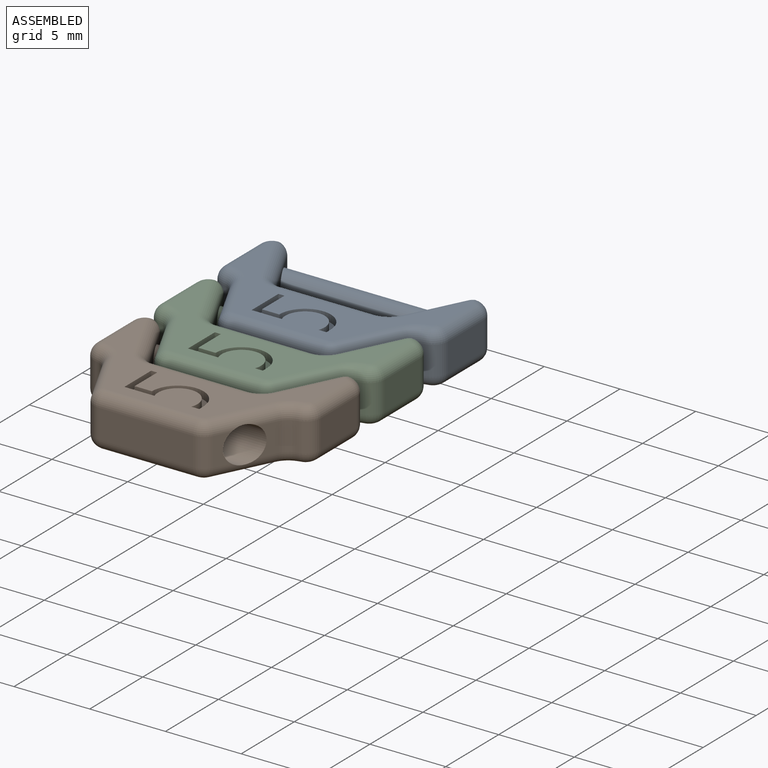
[diagram: assembled view]
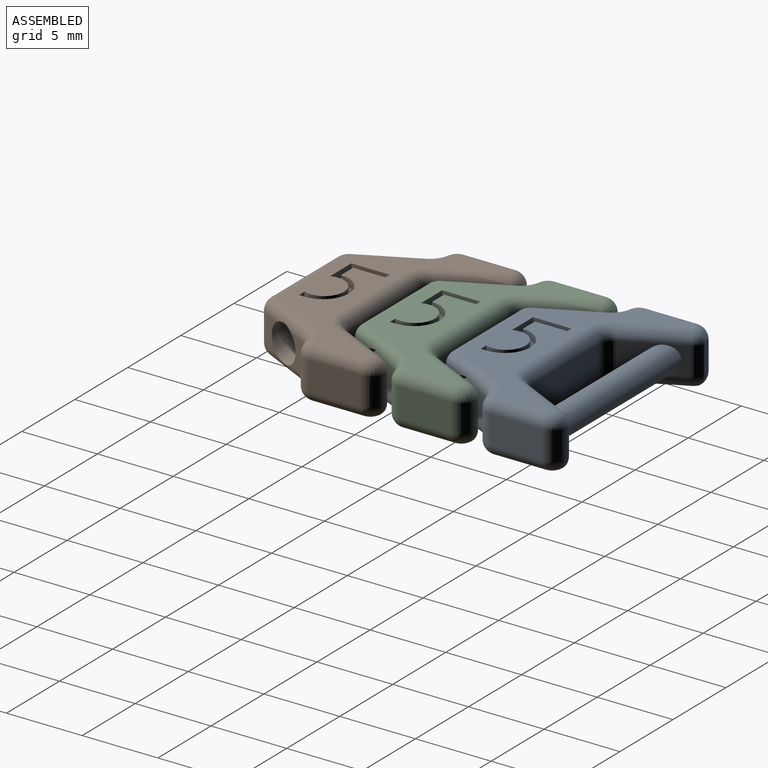
[diagram: assembled view, second angle]
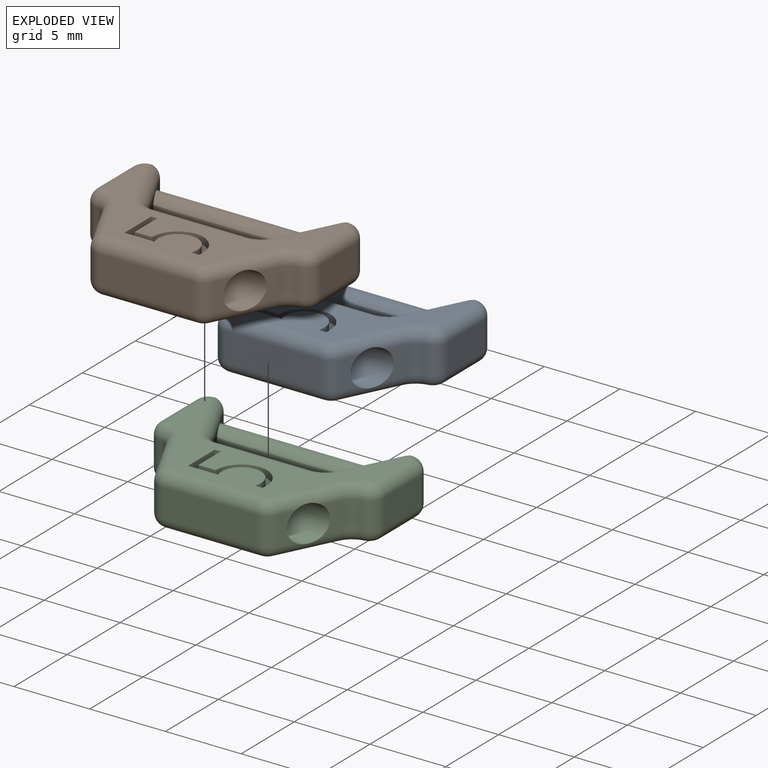
[diagram: exploded view]
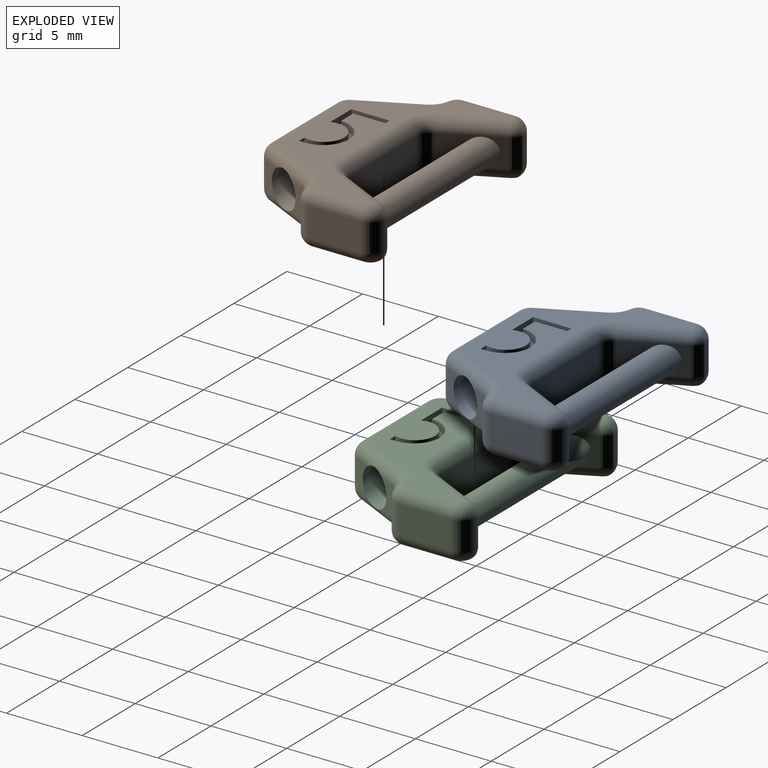
[diagram: exploded view, second angle]
ASSEMBLY  parts=3 mates=2
PART A: 82 faces, bbox 15.2x10.4x3.7 mm
  f0: plane 13.4x8.55mm, normal (0,0,1), area 39.4mm2, adj f26,f27,f28,f29,f30,f31,f32,f33
  f1: plane 1.9x1.03mm, normal (0.89,-0.45,0), area 1.5mm2, adj f14,f38,f59,f70
  f2: plane 1.9x1.17mm, normal (-0.89,-0.45,0), area 1.8mm2, adj f24,f46,f67,f70
  f3: plane 6.26x1.9mm, normal (0,-1,0), area 11.9mm2, adj f14,f25,f42,f63
  f4: plane 1.9x1.17mm, normal (0.89,-0.45,0), area 1.8mm2, adj f15,f38,f59,f70
  f5: plane 1.9x0.23mm, normal (0.24,-0.97,0), area 0.5mm2, adj f15,f16,f34,f55
  f6: plane 3.39x1.9mm, normal (1,0,0), area 6.4mm2, adj f16,f18,f30,f51
  f7: plane 3.86x2.09mm, normal (-0.89,0.45,0), area 5mm2, adj f17,f19,f27,f50,f71
  f8: plane 6.26x1.9mm, normal (0,1,0), area 11.9mm2, adj f19,f20,f31,f54
  f9: plane 3.67x1.9mm, normal (0.89,0.45,0), area 5mm2, adj f20,f22,f35,f58,f71
  f10: plane 3.39x1.9mm, normal (-1,0,0), area 6.4mm2, adj f21,f23,f41,f64
  f11: plane 1.9x0.23mm, normal (-0.24,-0.97,0), area 0.5mm2, adj f23,f24,f45,f68
  f12: plane 1.9x1.03mm, normal (-0.89,-0.45,0), area 1.5mm2, adj f25,f46,f67,f70
  f13: plane 13.4x8.55mm, normal (0,0,-1), area 42.9mm2, adj f48,f49,f50,f51,f52,f53,f54,f55
  f14: cylinder r=1mm len=1.9mm, axis (0,0,1), area 2.1mm2, adj f1,f3,f40,f61
  f15: cylinder r=1mm len=1.9mm, axis (0,0,1), area 1.6mm2, adj f4,f5,f36,f57
  f16: cylinder r=1mm len=1.9mm, axis (0,0,-1), area 2.5mm2, adj f5,f6,f32,f53
  f17: cylinder r=1mm len=1.9mm, axis (0,0,-1), area 1.4mm2, adj f7,f18,f26,f48
  f18: cylinder r=1mm len=1.9mm, axis (0,0,-1), area 3.2mm2, adj f6,f17,f28,f49
  f19: cylinder r=1mm len=1.9mm, axis (0,0,1), area 2.1mm2, adj f7,f8,f29,f52
  f20: cylinder r=1mm len=1.9mm, axis (0,0,-1), area 2.1mm2, adj f8,f9,f33,f56
  f21: cylinder r=1mm len=1.9mm, axis (0,0,-1), area 3.2mm2, adj f10,f22,f39,f62
  f22: cylinder r=1mm len=1.9mm, axis (0,0,-1), area 1.4mm2, adj f9,f21,f37,f60
  f23: cylinder r=1mm len=1.9mm, axis (0,0,-1), area 2.5mm2, adj f10,f11,f43,f66
  f24: cylinder r=1mm len=1.9mm, axis (0,0,1), area 1.6mm2, adj f2,f11,f47,f69
  f25: cylinder r=1mm len=1.9mm, axis (0,0,-1), area 2.1mm2, adj f3,f12,f44,f65
  f26: torus R=0.2mm, axis (0,0,1), area 0.6mm2, adj f0,f17,f27,f28
  f27: cylinder r=0.8mm len=4.03mm, axis (0.45,0.89,0), area 5.2mm2, adj f0,f7,f26,f29
  f28: torus R=0.2mm, axis (0,0,1), area 1.5mm2, adj f0,f18,f26,f30
  f29: torus R=1.8mm, axis (0,0,1), area 1.8mm2, adj f0,f19,f27,f31
  f30: cylinder r=0.8mm len=3.39mm, axis (0,-1,0), area 4.3mm2, adj f0,f6,f28,f32
  f31: cylinder r=0.8mm len=6.26mm, axis (1,0,0), area 7.9mm2, adj f0,f8,f29,f33
  f32: torus R=0.2mm, axis (0,0,1), area 1.2mm2, adj f0,f16,f30,f34
  f33: torus R=1.8mm, axis (0,0,1), area 1.8mm2, adj f0,f20,f31,f35
  f34: cylinder r=0.8mm len=0.84mm, axis (-0.97,-0.24,0), area 0.3mm2, adj f0,f5,f32,f36
  f35: cylinder r=0.8mm len=4.03mm, axis (0.45,-0.89,0), area 5.2mm2, adj f0,f9,f33,f37
  f36: torus R=1.8mm, axis (0,0,1), area 1.4mm2, adj f0,f15,f34,f38
  f37: torus R=0.2mm, axis (0,0,1), area 0.6mm2, adj f0,f22,f35,f39
  f38: cylinder r=0.8mm len=4.03mm, axis (-0.45,-0.89,0), area 4.9mm2, adj f0,f1,f4,f36,f40,f70
  f39: torus R=0.2mm, axis (0,0,1), area 1.5mm2, adj f0,f21,f37,f41
  f40: torus R=0.2mm, axis (0,0,1), area 1mm2, adj f0,f14,f38,f42
  f41: cylinder r=0.8mm len=3.39mm, axis (0,1,0), area 4.3mm2, adj f0,f10,f39,f43
  f42: cylinder r=0.8mm len=6.26mm, axis (-1,0,0), area 7.9mm2, adj f0,f3,f40,f44
  f43: torus R=0.2mm, axis (0,0,1), area 1.2mm2, adj f0,f23,f41,f45
  f44: torus R=0.2mm, axis (0,0,1), area 1mm2, adj f0,f25,f42,f46
  f45: cylinder r=0.8mm len=0.84mm, axis (-0.97,0.24,0), area 0.3mm2, adj f0,f11,f43,f47
  f46: cylinder r=0.8mm len=4.03mm, axis (-0.45,0.89,0), area 4.9mm2, adj f0,f2,f12,f44,f47,f70
  f47: torus R=1.8mm, axis (0,0,1), area 1.4mm2, adj f0,f24,f45,f46
  f48: torus R=0.2mm, axis (0,0,1), area 0.6mm2, adj f13,f17,f49,f50
  f49: torus R=0.2mm, axis (0,0,1), area 1.5mm2, adj f13,f18,f48,f51
  f50: cylinder r=0.8mm len=4.03mm, axis (-0.45,-0.89,0), area 5.2mm2, adj f7,f13,f48,f52
  f51: cylinder r=0.8mm len=3.39mm, axis (0,1,0), area 4.3mm2, adj f6,f13,f49,f53
  f52: torus R=1.8mm, axis (0,0,1), area 1.8mm2, adj f13,f19,f50,f54
  f53: torus R=0.2mm, axis (0,0,1), area 1.2mm2, adj f13,f16,f51,f55
  f54: cylinder r=0.8mm len=6.26mm, axis (-1,0,0), area 7.9mm2, adj f8,f13,f52,f56
  f55: cylinder r=0.8mm len=0.84mm, axis (0.97,0.24,0), area 0.3mm2, adj f5,f13,f53,f57
  f56: torus R=1.8mm, axis (0,0,1), area 1.8mm2, adj f13,f20,f54,f58
  f57: torus R=1.8mm, axis (0,0,1), area 1.4mm2, adj f13,f15,f55,f59
  f58: cylinder r=0.8mm len=4.03mm, axis (-0.45,0.89,0), area 5.2mm2, adj f9,f13,f56,f60
  f59: cylinder r=0.8mm len=4.03mm, axis (0.45,0.89,0), area 4.9mm2, adj f1,f4,f13,f57,f61,f70
  f60: torus R=0.2mm, axis (0,0,1), area 0.6mm2, adj f13,f22,f58,f62
  f61: torus R=0.2mm, axis (0,0,1), area 1mm2, adj f13,f14,f59,f63
  f62: torus R=0.2mm, axis (0,0,1), area 1.5mm2, adj f13,f21,f60,f64
  f63: cylinder r=0.8mm len=6.26mm, axis (1,0,0), area 7.9mm2, adj f3,f13,f61,f65
  f64: cylinder r=0.8mm len=3.39mm, axis (0,-1,0), area 4.3mm2, adj f10,f13,f62,f66
  f65: torus R=0.2mm, axis (0,0,1), area 1mm2, adj f13,f25,f63,f67
  f66: torus R=0.2mm, axis (0,0,1), area 1.2mm2, adj f13,f23,f64,f68
  f67: cylinder r=0.8mm len=4.03mm, axis (0.45,-0.89,0), area 4.9mm2, adj f2,f12,f13,f65,f69,f70
  f68: cylinder r=0.8mm len=0.84mm, axis (0.97,-0.24,0), area 0.3mm2, adj f11,f13,f66,f69
  f69: torus R=1.8mm, axis (0,0,1), area 1.4mm2, adj f13,f24,f67,f68
  f70: cylinder r=1.2mm len=11.01mm, axis (1,0,0), area 74mm2, adj f1,f2,f4,f12,f38,f46,f59,f67
  f71: cylinder r=0.9mm len=11.26mm, axis (-1,0,0), area 58.6mm2, adj f7,f9
  f72: plane 2.53x0.5mm, normal (1,0,0), area 1.3mm2, adj f0,f73,f80,f81
  f73: plane 1.99x0.5mm, normal (0,1,0), area 1mm2, adj f0,f72,f74,f81
  f74: cylinder r=1.3mm len=2.6mm, axis (0,0,1), area 2.5mm2, adj f0,f73,f75,f81
  f75: plane 0.52x0.5mm, normal (0,1,0), area 0.3mm2, adj f0,f74,f76,f81
  f76: plane 0.5x0.4mm, normal (-1,0,0), area 0.2mm2, adj f0,f75,f77,f81
  f77: cylinder r=1.7mm len=3.4mm, axis (0,0,1), area 2.7mm2, adj f0,f76,f78,f81
  f78: plane 1.14x0.5mm, normal (0,-1,0), area 0.6mm2, adj f0,f77,f79,f81
  f79: plane 2.13x0.5mm, normal (-1,0,0), area 1.1mm2, adj f0,f78,f80,f81
  f80: plane 0.5x0.4mm, normal (0,-1,0), area 0.2mm2, adj f0,f72,f79,f81
  f81: plane 4.94x2.53mm, normal (0,0,1), area 3.5mm2, adj f72,f73,f74,f75,f76,f77,f78,f79
PART B: same geometry as A
PART C: same geometry as A
PLACE A t=(-6.16,1.1,5.64)mm
PLACE B t=(-6.16,-10.9,5.64)mm
PLACE C t=(-6.16,-4.9,5.64)mm
MATE revolute A.f70 <-> C.f71  axis (1,0,0) through (-6.16,3.42,5.64)mm
MATE revolute C.f70 <-> B.f71  axis (1,0,0) through (-6.16,-2.58,5.64)mm
